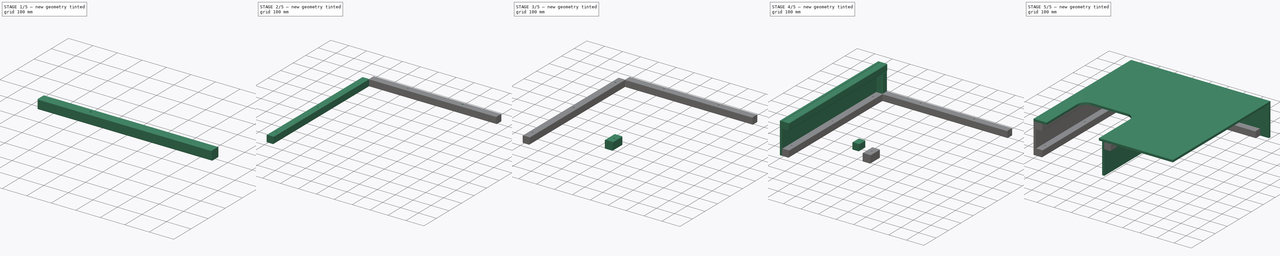
[diagram: build sequence overview — one tinted view per stage of 5, left to right]
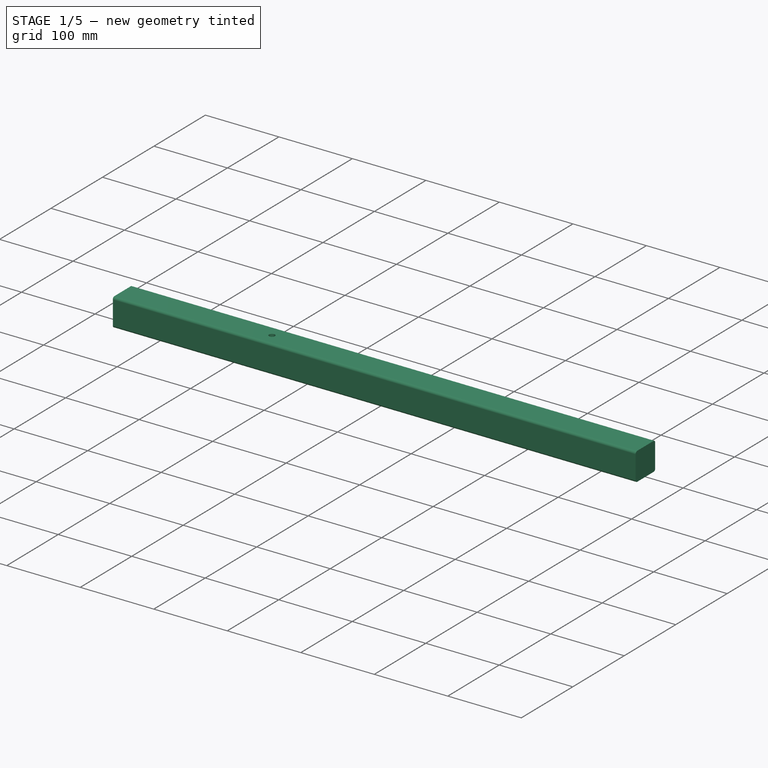
[diagram: stage 1 of 5 — iso view after this stage's code; geometry added in this stage tinted green]
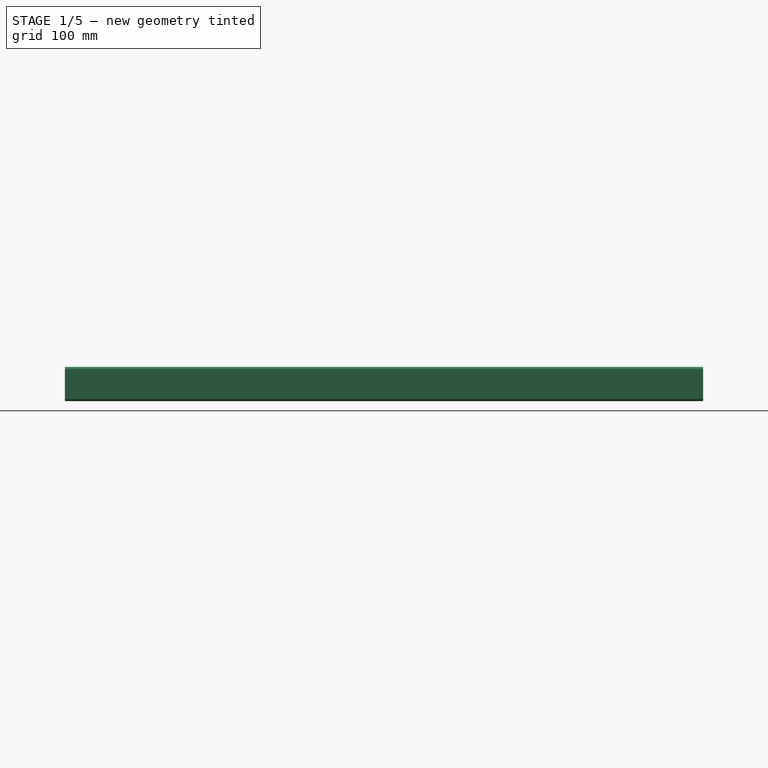
[diagram: stage 1 of 5 — front view after this stage's code; geometry added in this stage tinted green]
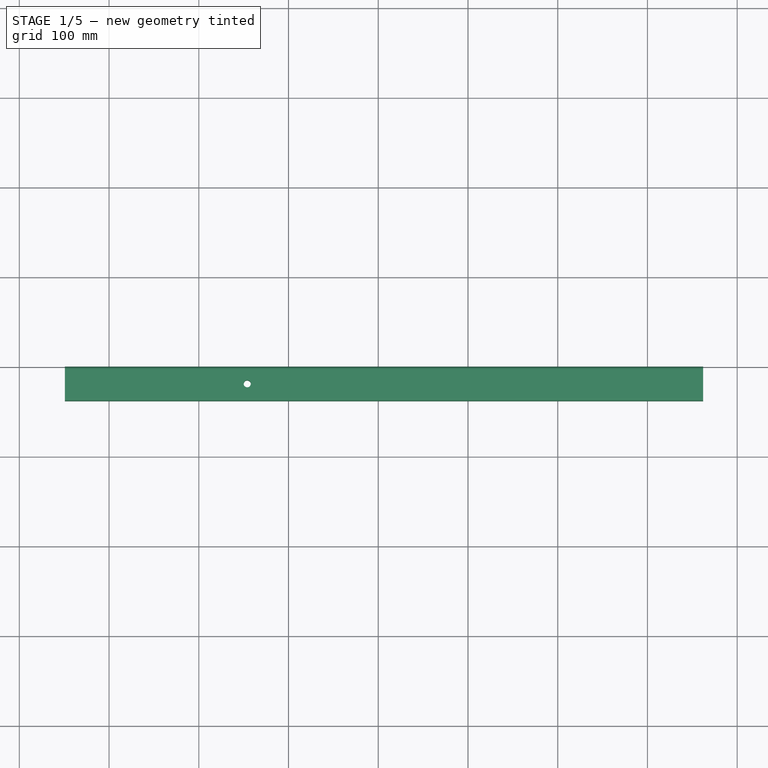
[diagram: stage 1 of 5 — top view after this stage's code; geometry added in this stage tinted green]
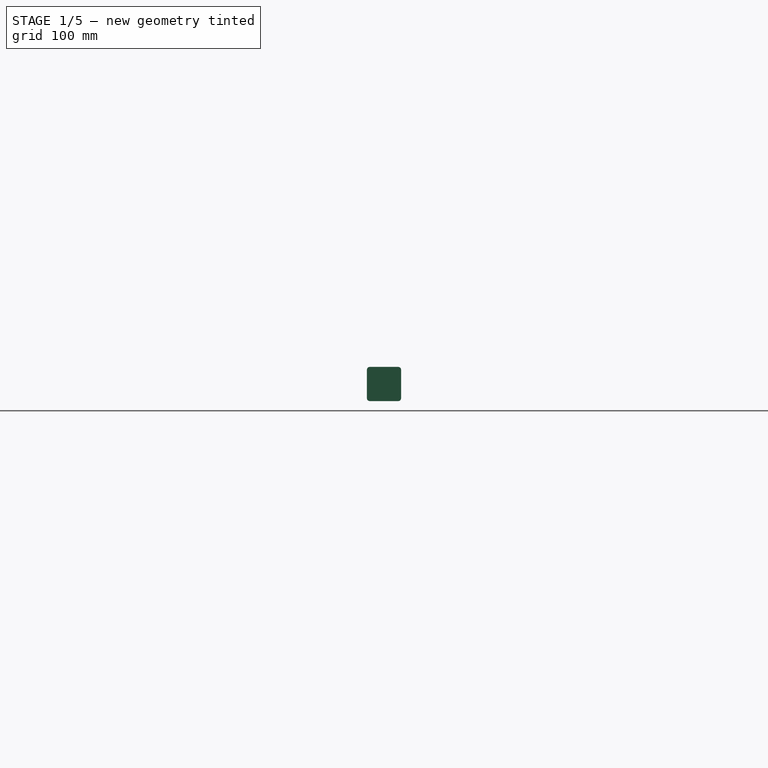
[diagram: stage 1 of 5 — right view after this stage's code; geometry added in this stage tinted green]
FCSTD DOCUMENT  (FreeCAD 0.19R)
Label: Baffle_Box
License: Creative Commons Attribution
LicenseURL: http://creativecommons.org/licenses/by/4.0/
objects: App::Link×66, Sketcher::SketchObject×10, Part::Extrusion×10, Part::Cut×6, Part::Feature×2, Part::Cylinder×1
note: 29 computed .brp shape members not serialized (recipe doc carries the construction recipe); baked Part::Feature solids carry a one-line shape summary decoded from their .brp

FEATURE [Sketcher::SketchObject] Sketch014  label="Sketch_2x2_rail003"
  sketch-geometry (8):
    g0: LineSegment StartX=0 StartY=34.925 StartZ=0 EndX=0 EndY=3.175 EndZ=0
    g1: ArcOfCircle CenterX=3.175 CenterY=34.925 CenterZ=0 NormalX=0 NormalY=0 NormalZ=1 AngleXU=0 Radius=3.175 StartAngle=1.5708 EndAngle=3.14159
    g2: LineSegment StartX=3.175 StartY=38.1 StartZ=0 EndX=34.925 EndY=38.1 EndZ=0
    g3: ArcOfCircle CenterX=34.925 CenterY=34.925 CenterZ=0 NormalX=0 NormalY=0 NormalZ=1 AngleXU=0 Radius=3.175 StartAngle=9e-16 EndAngle=1.5708
    g4: LineSegment StartX=38.1 StartY=34.925 StartZ=0 EndX=38.1 EndY=3.175 EndZ=0
    g5: ArcOfCircle CenterX=34.925 CenterY=3.175 CenterZ=0 NormalX=0 NormalY=0 NormalZ=1 AngleXU=0 Radius=3.175 StartAngle=4.71239 EndAngle=6.28319
    g6: LineSegment StartX=34.925 StartY=4e-16 StartZ=0 EndX=3.175 EndY=4e-16 EndZ=0
    g7: ArcOfCircle CenterX=3.175 CenterY=3.175 CenterZ=0 NormalX=0 NormalY=0 NormalZ=1 AngleXU=0 Radius=3.175 StartAngle=3.14159 EndAngle=4.71239
  constraints (22):
    c: Vertical(g0)
    c: Tangent(g0,g1) = -1.5708
    c: Radius(g1) = 3.175
    c: Angle(g1) = 1.5708
    c: Coincident(g2,g1)
    c: Horizontal(g2)
    c: Tangent(g2,g3) = 1.5708
    c: Coincident(g4,g3)
    c: Vertical(g4)
    c: Tangent(g5,g4) = 1.5708
    c: Horizontal(g6)
    c: Tangent(g6,g5) = 1.5708
    c: Tangent(g7,g6) = 1.5708
    c: Tangent(g7,g0) = -1.5708
    c: Equal(g1,g7)
    c: Equal(g7,g3)
    c: Equal(g2,g0)
    c: Equal(g0,g6)
    c: Equal(g6,g4)
    c: PointOnObject(g-1,g0)
    c: PointOnObject(g6,g-1)
    c: DistanceX(g0,g4) = 38.1
FEATURE [Part::Extrusion] Extrude014  label="BF_B"
  Base = -> Sketch014
  Dir = (0,0,1)
  DirMode = 2
  FaceMakerClass = Part::FaceMakerBullseye
  LengthFwd = 711.2
  LengthRev = 0
  Placement = pos=(50.8,800.1,196.85) rot=(0.57735,-0.57735,0.57735;4.18879rad)
  Solid = true
  Symmetric = false
FEATURE [App::Link] Link001  label="Part_F_Baffle_Side_Wall_002"
  LinkPlacement = pos=(800.1,9.59848e-05,19.0499) rot=(0.57735,0.57735,0.57735;2.0944rad)
  LinkedObject = -> Extrude012
  Placement = pos=(800.1,9.59848e-05,19.0499) rot=(0.57735,0.57735,0.57735;2.0944rad)
FEATURE [App::Link] Link002  label="BF_A001"
  LinkPlacement = pos=(762,2.34664e-05,196.85) rot=(-1,0,0;1.5708rad)
  LinkedObject = -> Extrude
  Placement = pos=(762,2.34664e-05,196.85) rot=(-1,0,0;1.5708rad)
FEATURE [App::Link] Link003  label="BF_B001"
  LinkPlacement = pos=(50.8,762,19.05) rot=(0.57735,0.57735,0.57735;2.0944rad)
  LinkedObject = -> Extrude014
  Placement = pos=(50.8,762,19.05) rot=(0.57735,0.57735,0.57735;2.0944rad)
FEATURE [App::Link] Link004  label="BF_C001"
  LinkPlacement = pos=(800.1,800.1,19.05) rot=(0,0,1;3.14159rad)
  LinkedObject = -> Extrude013
  Placement = pos=(800.1,800.1,19.05) rot=(0,0,1;3.14159rad)
FEATURE [App::Link] Link006  label="BF_E001"
  LinkPlacement = pos=(400.05,406.4,196.85) rot=(0,-0.707107,0.707107;3.14159rad)
  LinkedObject = -> Extrude016
  Placement = pos=(400.05,406.4,196.85) rot=(0,-0.707107,0.707107;3.14159rad)
FEATURE [Part::Feature] Screw_w_Washer_A
  Placement = pos=(-0.7,25.4,37.3) rot=(0,1,0;1.5708rad)
  shape: bbox 38.1 x 15.88 x 15.88 mm, 35 faces (baked)
FEATURE [App::Link] Link  label="Screw_w_Washer_A001"
  LinkPlacement = pos=(-0.774999,736.6,37.3) rot=(0,1,0;1.5708rad)
  LinkedObject = -> Screw_w_Washer_A
  Placement = pos=(-0.774999,736.6,37.3) rot=(0,1,0;1.5708rad)
FEATURE [App::Link] Link007  label="Screw_w_Washer_A002"
  LinkPlacement = pos=(-0.793745,508,38.1) rot=(0,1,0;1.5708rad)
  LinkedObject = -> Screw_w_Washer_A
  Placement = pos=(-0.793745,508,38.1) rot=(0,1,0;1.5708rad)
FEATURE [App::Link] Link008  label="Screw_w_Washer_A003"
  LinkPlacement = pos=(-0.793745,254,38.1) rot=(0,1,0;1.5708rad)
  LinkedObject = -> Screw_w_Washer_A
  Placement = pos=(-0.793745,254,38.1) rot=(0,1,0;1.5708rad)
FEATURE [App::Link] Link009  label="Screw_w_Washer_A004"
  LinkPlacement = pos=(-0.793742,781.05,63.5) rot=(0,1,0;1.5708rad)
  LinkedObject = -> Screw_w_Washer_A
  Placement = pos=(-0.793742,781.05,63.5) rot=(0,1,0;1.5708rad)
FEATURE [App::Link] Link010  label="Screw_w_Washer_A005"
  LinkPlacement = pos=(-0.793729,781.05,177.8) rot=(0,1,0;1.5708rad)
  LinkedObject = -> Screw_w_Washer_A
  Placement = pos=(-0.793729,781.05,177.8) rot=(0,1,0;1.5708rad)
FEATURE [App::Link] Link011  label="Screw_w_Washer_A006"
  LinkPlacement = pos=(31.75,813.594,38.1) rot=(1,0,0;1.5708rad)
  LinkedObject = -> Screw_w_Washer_A
  Placement = pos=(31.75,813.594,38.1) rot=(1,0,0;1.5708rad)
FEATURE [App::Link] Link012  label="Screw_w_Washer_A007"
  LinkPlacement = pos=(31.75,813.594,139.7) rot=(1,0,0;1.5708rad)
  LinkedObject = -> Screw_w_Washer_A
  Placement = pos=(31.75,813.594,139.7) rot=(1,0,0;1.5708rad)
FEATURE [App::Link] Link013  label="Screw_w_Washer_A008"
  LinkPlacement = pos=(95.25,813.6,177.8) rot=(1,0,0;1.5708rad)
  LinkedObject = -> Screw_w_Washer_A
  Placement = pos=(95.25,813.6,177.8) rot=(1,0,0;1.5708rad)
FEATURE [App::Link] Link014  label="Screw_w_Washer_A009"
  LinkPlacement = pos=(-1.58748,38.1,177.8) rot=(0,1,0;1.5708rad)
  LinkedObject = -> Screw_w_Washer_A
  Placement = pos=(-1.58748,38.1,177.8) rot=(0,1,0;1.5708rad)
FEATURE [App::Link] Link015  label="Screw_w_Washer_A010"
  LinkPlacement = pos=(-0.793758,279.4,177.8) rot=(0,1,0;1.5708rad)
  LinkedObject = -> Screw_w_Washer_A
  Placement = pos=(-0.793758,279.4,177.8) rot=(0,1,0;1.5708rad)
FEATURE [App::Link] Link016  label="Screw_w_Washer_A011"
  LinkPlacement = pos=(-0.793729,533.4,177.8) rot=(0,1,0;1.5708rad)
  LinkedObject = -> Screw_w_Washer_A
  Placement = pos=(-0.793729,533.4,177.8) rot=(0,1,0;1.5708rad)
FEATURE [App::Link] Link017  label="Screw_w_Washer_A012"
  LinkPlacement = pos=(31.7501,25.4,210.344) rot=(0.707107,0.707107,0;3.14159rad)
  LinkedObject = -> Screw_w_Washer_A
  Placement = pos=(31.7501,25.4,210.344) rot=(0.707107,0.707107,0;3.14159rad)
FEATURE [App::Link] Link018  label="Screw_w_Washer_A013"
  LinkPlacement = pos=(69.85,781.05,210.344) rot=(0,1,0;3.14159rad)
  LinkedObject = -> Screw_w_Washer_A
  Placement = pos=(69.85,781.05,210.344) rot=(0,1,0;3.14159rad)
FEATURE [App::Link] Link019  label="Screw_w_Washer_A014"
  LinkPlacement = pos=(31.75,755.65,210.344) rot=(0,1,0;3.14159rad)
  LinkedObject = -> Screw_w_Washer_A
  Placement = pos=(31.75,755.65,210.344) rot=(0,1,0;3.14159rad)
FEATURE [App::Link] Link020  label="Screw_w_Washer_A015"
  LinkPlacement = pos=(31.75,393.7,210.344) rot=(0,1,0;3.14159rad)
  LinkedObject = -> Screw_w_Washer_A
  Placement = pos=(31.75,393.7,210.344) rot=(0,1,0;3.14159rad)
FEATURE [App::Link] Link021  label="Screw_w_Washer_A016"
  LinkPlacement = pos=(31.75,196.85,210.344) rot=(0,1,0;3.14159rad)
  LinkedObject = -> Screw_w_Washer_A
  Placement = pos=(31.75,196.85,210.344) rot=(0,1,0;3.14159rad)
FEATURE [App::Link] Link022  label="Screw_w_Washer_A017"
  LinkPlacement = pos=(31.75,584.201,210.344) rot=(0,1,0;3.14159rad)
  LinkedObject = -> Screw_w_Washer_A
  Placement = pos=(31.75,584.201,210.344) rot=(0,1,0;3.14159rad)
FEATURE [App::Link] Link023  label="Screw_w_Washer_A018"
  LinkPlacement = pos=(742.95,781.05,210.344) rot=(0,1,0;3.14159rad)
  LinkedObject = -> Screw_w_Washer_A
  Placement = pos=(742.95,781.05,210.344) rot=(0,1,0;3.14159rad)
FEATURE [App::Link] Link024  label="Screw_w_Washer_A019"
  LinkPlacement = pos=(533.4,781.05,210.344) rot=(1,0,0;3.14159rad)
  LinkedObject = -> Screw_w_Washer_A
  Placement = pos=(533.4,781.05,210.344) rot=(1,0,0;3.14159rad)
FEATURE [App::Link] Link025  label="Screw_w_Washer_A020"
  LinkPlacement = pos=(279.4,781.05,210.344) rot=(0,1,0;3.14159rad)
  LinkedObject = -> Screw_w_Washer_A
  Placement = pos=(279.4,781.05,210.344) rot=(0,1,0;3.14159rad)
FEATURE [App::Link] Link026  label="Screw_w_Washer_A021"
  LinkPlacement = pos=(781.05,25.4002,210.344) rot=(0,1,0;3.14159rad)
  LinkedObject = -> Screw_w_Washer_A
  Placement = pos=(781.05,25.4002,210.344) rot=(0,1,0;3.14159rad)
FEATURE [App::Link] Link027  label="Screw_w_Washer_A022"
  LinkPlacement = pos=(781.05,755.65,210.344) rot=(0,1,0;3.14159rad)
  LinkedObject = -> Screw_w_Washer_A
  Placement = pos=(781.05,755.65,210.344) rot=(0,1,0;3.14159rad)
FEATURE [App::Link] Link028  label="Screw_w_Washer_A023"
  LinkPlacement = pos=(781.05,393.7,210.344) rot=(0,1,0;3.14159rad)
  LinkedObject = -> Screw_w_Washer_A
  Placement = pos=(781.05,393.7,210.344) rot=(0,1,0;3.14159rad)
FEATURE [App::Link] Link029  label="Screw_w_Washer_A024"
  LinkPlacement = pos=(781.05,584.201,210.344) rot=(0,1,0;3.14159rad)
  LinkedObject = -> Screw_w_Washer_A
  Placement = pos=(781.05,584.201,210.344) rot=(0,1,0;3.14159rad)
FEATURE [App::Link] Link030  label="Screw_w_Washer_A025"
  LinkPlacement = pos=(781.05,196.85,210.344) rot=(0,1,0;3.14159rad)
  LinkedObject = -> Screw_w_Washer_A
  Placement = pos=(781.05,196.85,210.344) rot=(0,1,0;3.14159rad)
FEATURE [App::Link] Link031  label="Screw_w_Washer_A026"
  LinkPlacement = pos=(431.8,19.0501,210.344) rot=(0,1,0;3.14159rad)
  LinkedObject = -> Screw_w_Washer_A
  Placement = pos=(431.8,19.0501,210.344) rot=(0,1,0;3.14159rad)
FEATURE [App::Link] Link032  label="Screw_w_Washer_A027"
  LinkPlacement = pos=(399.256,31.75,177.8) rot=(0,1,0;1.5708rad)
  LinkedObject = -> Screw_w_Washer_A
  Placement = pos=(399.256,31.75,177.8) rot=(0,1,0;1.5708rad)
FEATURE [App::Link] Link033  label="Screw_w_Washer_A028"
  LinkPlacement = pos=(381,387.35,210.344) rot=(0,1,0;3.14159rad)
  LinkedObject = -> Screw_w_Washer_A
  Placement = pos=(381,387.35,210.344) rot=(0,1,0;3.14159rad)
FEATURE [App::Link] Link034  label="Screw_w_Washer_A029"
  LinkPlacement = pos=(413.544,374.65,177.8) rot=(0,-1,0;1.5708rad)
  LinkedObject = -> Screw_w_Washer_A
  Placement = pos=(413.544,374.65,177.8) rot=(0,-1,0;1.5708rad)
FEATURE [App::Link] Link035  label="Screw_w_Washer_A030"
  LinkPlacement = pos=(414.338,225.425,41.2751) rot=(0,-1,0;1.5708rad)
  LinkedObject = -> Screw_w_Washer_A
  Placement = pos=(414.338,225.425,41.2751) rot=(0,-1,0;1.5708rad)
FEATURE [App::Link] Link036  label="Screw_w_Washer_A031"
  LinkPlacement = pos=(413.544,180.975,41.2751) rot=(0,-1,0;1.5708rad)
  LinkedObject = -> Screw_w_Washer_A
  Placement = pos=(413.544,180.975,41.2751) rot=(0,-1,0;1.5708rad)
FEATURE [App::Link] Link037  label="Screw_w_Washer_A032"
  LinkPlacement = pos=(723.9,813.601,177.8) rot=(1,0,0;1.5708rad)
  LinkedObject = -> Screw_w_Washer_A
  Placement = pos=(723.9,813.601,177.8) rot=(1,0,0;1.5708rad)
FEATURE [App::Link] Link038  label="Screw_w_Washer_A033"
  LinkPlacement = pos=(406.4,813.801,177.8) rot=(1,0,0;1.5708rad)
  LinkedObject = -> Screw_w_Washer_A
  Placement = pos=(406.4,813.801,177.8) rot=(1,0,0;1.5708rad)
FEATURE [App::Link] Link039  label="Screw_w_Washer_A034"
  LinkPlacement = pos=(406.4,813.8,38.1001) rot=(1,0,0;1.5708rad)
  LinkedObject = -> Screw_w_Washer_A
  Placement = pos=(406.4,813.8,38.1001) rot=(1,0,0;1.5708rad)
FEATURE [App::Link] Link040  label="Screw_w_Washer_A035"
  LinkPlacement = pos=(813.594,25.4001,38.1001) rot=(0,-1,0;1.5708rad)
  LinkedObject = -> Screw_w_Washer_A
  Placement = pos=(813.594,25.4001,38.1001) rot=(0,-1,0;1.5708rad)
FEATURE [App::Link] Link041  label="Screw_w_Washer_A036"
  LinkPlacement = pos=(813.594,254,38.1) rot=(0,-1,0;1.5708rad)
  LinkedObject = -> Screw_w_Washer_A
  Placement = pos=(813.594,254,38.1) rot=(0,-1,0;1.5708rad)
FEATURE [App::Link] Link042  label="Screw_w_Washer_A037"
  LinkPlacement = pos=(813.594,508,38.1001) rot=(0,-1,0;1.5708rad)
  LinkedObject = -> Screw_w_Washer_A
  Placement = pos=(813.594,508,38.1001) rot=(0,-1,0;1.5708rad)
FEATURE [App::Link] Link043  label="Screw_w_Washer_A038"
  LinkPlacement = pos=(813.594,736.6,38.1001) rot=(0,-1,0;1.5708rad)
  LinkedObject = -> Screw_w_Washer_A
  Placement = pos=(813.594,736.6,38.1001) rot=(0,-1,0;1.5708rad)
FEATURE [App::Link] Link044  label="Screw_w_Washer_A039"
  LinkPlacement = pos=(723.9,813.8,38.1001) rot=(1,0,0;1.5708rad)
  LinkedObject = -> Screw_w_Washer_A
  Placement = pos=(723.9,813.8,38.1001) rot=(1,0,0;1.5708rad)
FEATURE [App::Link] Link045  label="Screw_w_Washer_A040"
  LinkPlacement = pos=(781.05,813.594,38.1001) rot=(1,0,0;1.5708rad)
  LinkedObject = -> Screw_w_Washer_A
  Placement = pos=(781.05,813.594,38.1001) rot=(1,0,0;1.5708rad)
FEATURE [App::Link] Link046  label="Screw_w_Washer_A041"
  LinkPlacement = pos=(781.05,813.8,139.7) rot=(1,0,0;1.5708rad)
  LinkedObject = -> Screw_w_Washer_A
  Placement = pos=(781.05,813.8,139.7) rot=(1,0,0;1.5708rad)
FEATURE [App::Link] Link047  label="Screw_w_Washer_A042"
  LinkPlacement = pos=(813.594,38.1001,177.8) rot=(0,-1,0;1.5708rad)
  LinkedObject = -> Screw_w_Washer_A
  Placement = pos=(813.594,38.1001,177.8) rot=(0,-1,0;1.5708rad)
FEATURE [App::Link] Link048  label="Screw_w_Washer_A043"
  LinkPlacement = pos=(813.594,279.4,177.8) rot=(0,-1,0;1.5708rad)
  LinkedObject = -> Screw_w_Washer_A
  Placement = pos=(813.594,279.4,177.8) rot=(0,-1,0;1.5708rad)
FEATURE [App::Link] Link049  label="Screw_w_Washer_A044"
  LinkPlacement = pos=(813.594,533.4,177.8) rot=(0,-1,0;1.5708rad)
  LinkedObject = -> Screw_w_Washer_A
  Placement = pos=(813.594,533.4,177.8) rot=(0,-1,0;1.5708rad)
FEATURE [App::Link] Link050  label="Screw_w_Washer_A045"
  LinkPlacement = pos=(813.594,781.05,177.8) rot=(0,-1,0;1.5708rad)
  LinkedObject = -> Screw_w_Washer_A
  Placement = pos=(813.594,781.05,177.8) rot=(0,-1,0;1.5708rad)
FEATURE [App::Link] Link051  label="Screw_w_Washer_A046"
  LinkPlacement = pos=(813.5,781.05,63.5001) rot=(0,-1,0;1.5708rad)
  LinkedObject = -> Screw_w_Washer_A
  Placement = pos=(813.5,781.05,63.5001) rot=(0,-1,0;1.5708rad)
FEATURE [Part::Cylinder] Cylinder
  Angle = 360
  AttacherType = Attacher::AttachEngine3D
  Height = 50.8
  Placement = pos=(381,203.2,16.6687) rot=(0,0,1;0rad)
  Radius = 3.96875
FEATURE [App::Link] Link055  label="Baffle_Frame_D001"
  LinkPlacement = pos=(749.3,-8.93235e-05,0) rot=(0,0,1;0rad)
  LinkedObject = -> Cut003
  Placement = pos=(749.3,-8.93235e-05,0) rot=(0,0,1;0rad)
FEATURE [App::Link] Link056  label="T-Nut_1/005"
  LinkPlacement = pos=(31.75,50.8,58.45) rot=(-1,0,0;1.5708rad)
  LinkedObject = -> User_Library_t_nut_scaleable_M6
  Placement = pos=(31.75,50.8,58.45) rot=(-1,0,0;1.5708rad)
FEATURE [App::Link] Link057  label="T-Nut_1/006"
  LinkPlacement = pos=(31.75,381,58.35) rot=(-1,0,0;1.5708rad)
  LinkedObject = -> User_Library_t_nut_scaleable_M6
  Placement = pos=(31.75,381,58.35) rot=(-1,0,0;1.5708rad)
FEATURE [App::Link] Link058  label="T-Nut_1/007"
  LinkPlacement = pos=(31.75,711.2,58.4) rot=(-1,0,0;1.5708rad)
  LinkedObject = -> User_Library_t_nut_scaleable_M6
  Placement = pos=(31.75,711.2,58.4) rot=(-1,0,0;1.5708rad)
FEATURE [App::Link] Link059  label="T-Nut_1/008"
  LinkPlacement = pos=(781.051,50.8,58.4501) rot=(-1,0,0;1.5708rad)
  LinkedObject = -> User_Library_t_nut_scaleable_M6
  Placement = pos=(781.051,50.8,58.4501) rot=(-1,0,0;1.5708rad)
FEATURE [App::Link] Link060  label="T-Nut_1/009"
  LinkPlacement = pos=(781.05,381,58.3502) rot=(-1,0,0;1.5708rad)
  LinkedObject = -> User_Library_t_nut_scaleable_M6
  Placement = pos=(781.05,381,58.3502) rot=(-1,0,0;1.5708rad)
FEATURE [App::Link] Link061  label="T-Nut_1/010"
  LinkPlacement = pos=(781.051,711.2,58.4501) rot=(-1,0,0;1.5708rad)
  LinkedObject = -> User_Library_t_nut_scaleable_M6
  Placement = pos=(781.051,711.2,58.4501) rot=(-1,0,0;1.5708rad)
FEATURE [App::Link] Link062  label="Cylinder004"
  LinkPlacement = pos=(254,781.05,12.7) rot=(0,0,1;0rad)
  LinkedObject = -> Cylinder
  Placement = pos=(254,781.05,12.7) rot=(0,0,1;0rad)
FEATURE [App::Link] Link063  label="Cylinder005"
  LinkPlacement = pos=(558.8,781.05,12.7) rot=(0,0,1;0rad)
  LinkedObject = -> Cylinder
  Placement = pos=(558.8,781.05,12.7) rot=(0,0,1;0rad)
FEATURE [Part::Cut] Cut004
  Base = -> Link003
  Tool = -> Link062
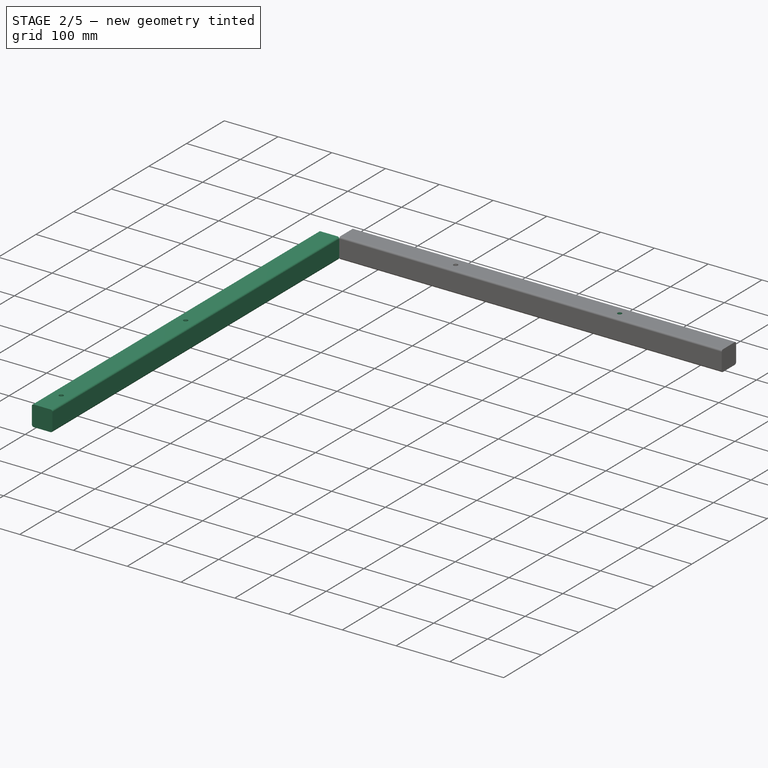
[diagram: stage 2 of 5 — iso view after this stage's code; geometry added in this stage tinted green]
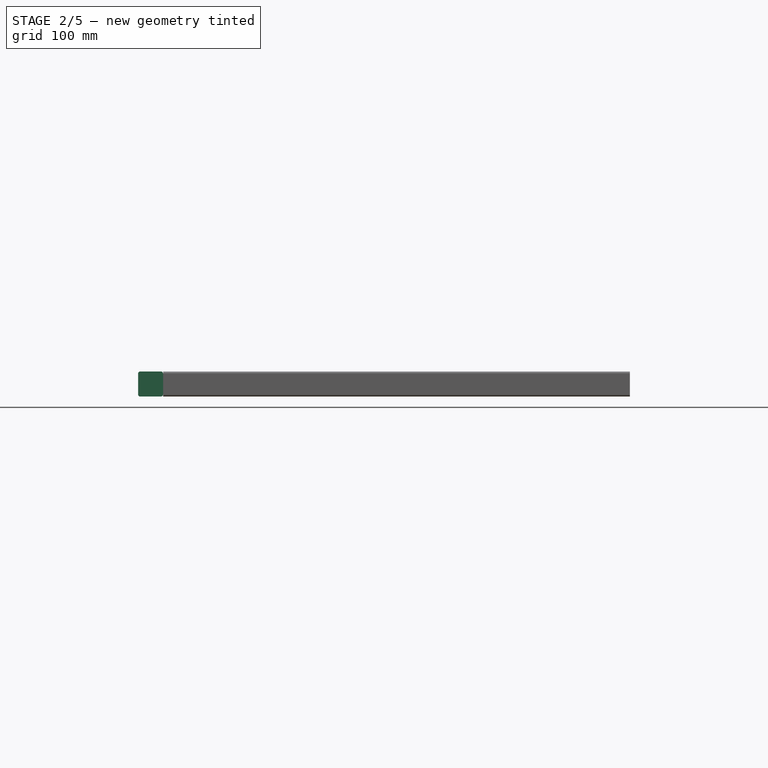
[diagram: stage 2 of 5 — front view after this stage's code; geometry added in this stage tinted green]
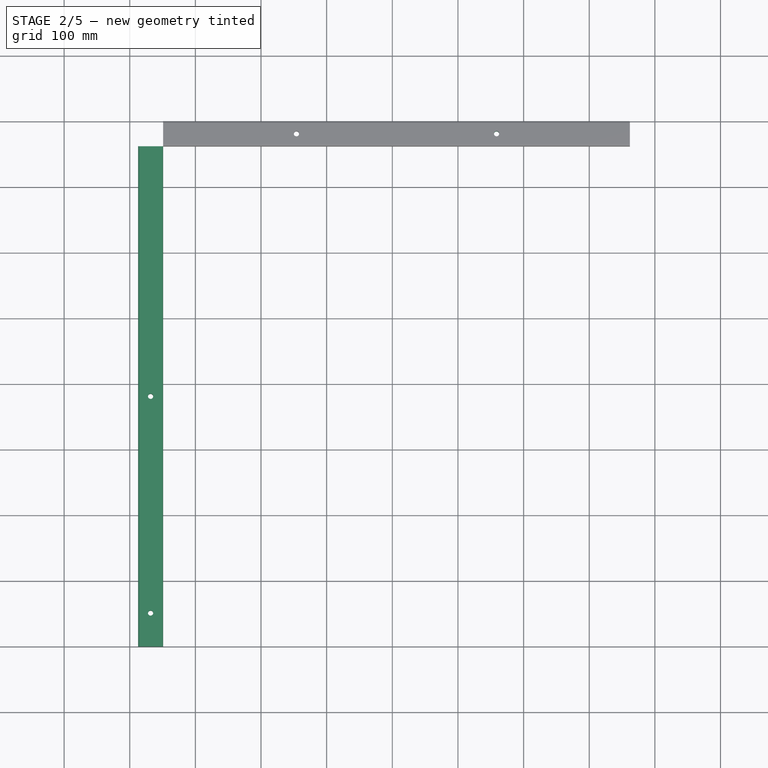
[diagram: stage 2 of 5 — top view after this stage's code; geometry added in this stage tinted green]
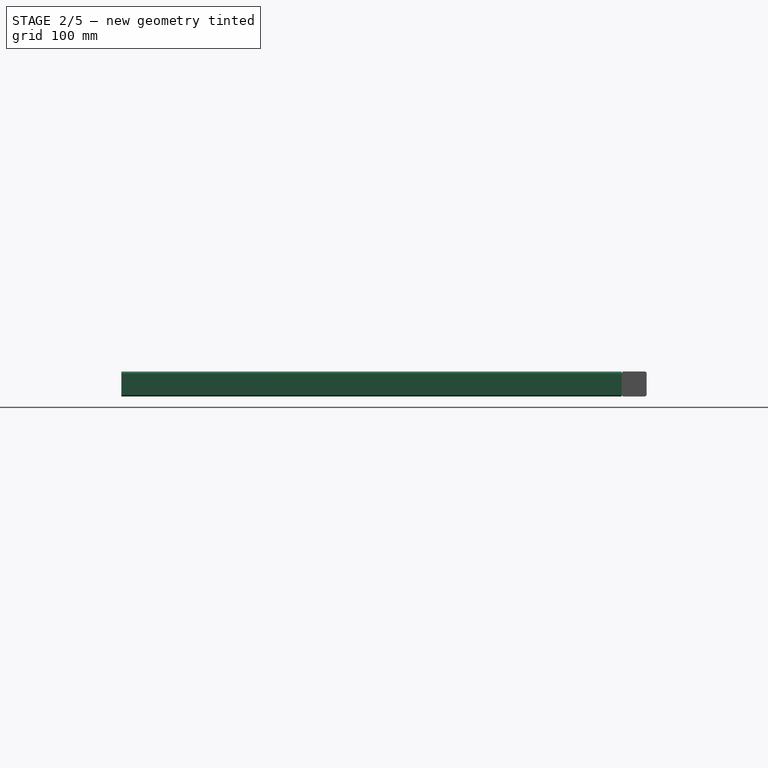
[diagram: stage 2 of 5 — right view after this stage's code; geometry added in this stage tinted green]
FEATURE [Sketcher::SketchObject] Sketch015  label="Sketch_2x2_rail004"
  sketch-geometry (8):
    g0: LineSegment StartX=0 StartY=34.925 StartZ=0 EndX=0 EndY=3.175 EndZ=0
    g1: ArcOfCircle CenterX=3.175 CenterY=34.925 CenterZ=0 NormalX=0 NormalY=0 NormalZ=1 AngleXU=0 Radius=3.175 StartAngle=1.5708 EndAngle=3.14159
    g2: LineSegment StartX=3.175 StartY=38.1 StartZ=0 EndX=34.925 EndY=38.1 EndZ=0
    g3: ArcOfCircle CenterX=34.925 CenterY=34.925 CenterZ=0 NormalX=0 NormalY=0 NormalZ=1 AngleXU=0 Radius=3.175 StartAngle=1.2e-15 EndAngle=1.5708
    g4: LineSegment StartX=38.1 StartY=34.925 StartZ=0 EndX=38.1 EndY=3.175 EndZ=0
    g5: ArcOfCircle CenterX=34.925 CenterY=3.175 CenterZ=0 NormalX=0 NormalY=0 NormalZ=1 AngleXU=0 Radius=3.175 StartAngle=4.71239 EndAngle=6.28319
    g6: LineSegment StartX=34.925 StartY=0 StartZ=0 EndX=3.175 EndY=0 EndZ=0
    g7: ArcOfCircle CenterX=3.175 CenterY=3.175 CenterZ=0 NormalX=0 NormalY=0 NormalZ=1 AngleXU=0 Radius=3.175 StartAngle=3.14159 EndAngle=4.71239
  constraints (22):
    c: Vertical(g0)
    c: Tangent(g0,g1) = -1.5708
    c: Radius(g1) = 3.175
    c: Angle(g1) = 1.5708
    c: Coincident(g2,g1)
    c: Horizontal(g2)
    c: Tangent(g2,g3) = 1.5708
    c: Coincident(g4,g3)
    c: Vertical(g4)
    c: Tangent(g5,g4) = 1.5708
    c: Horizontal(g6)
    c: Tangent(g6,g5) = 1.5708
    c: Tangent(g7,g6) = 1.5708
    c: Tangent(g7,g0) = -1.5708
    c: Equal(g1,g7)
    c: Equal(g7,g3)
    c: Equal(g2,g0)
    c: Equal(g0,g6)
    c: Equal(g6,g4)
    c: PointOnObject(g-1,g0)
    c: PointOnObject(g6,g-1)
    c: DistanceX(g0,g4) = 38.1
FEATURE [Part::Extrusion] Extrude015  label="BF_D"
  Base = -> Sketch015
  Dir = (0,0,1)
  DirMode = 2
  FaceMakerClass = Part::FaceMakerBullseye
  LengthFwd = 762
  LengthRev = 0
  Placement = pos=(12.7,2.4e-14,19.05) rot=(0.57735,0.57735,0.57735;4.18879rad)
  Solid = true
  Symmetric = false
FEATURE [Part::Feature] User_Library_t_nut_scaleable_M6  label="T-Nut_1/4"
  Placement = pos=(381,203.2,64.7937) rot=(1,0,0;4.71239rad)
  shape: bbox 18 x 18 x 9 mm, 45 faces (baked)
FEATURE [App::Link] Link052  label="Cylinder001"
  LinkPlacement = pos=(31.75,50.8,12.7) rot=(0,0,1;0rad)
  LinkedObject = -> Cylinder
  Placement = pos=(31.75,50.8,12.7) rot=(0,0,1;0rad)
FEATURE [App::Link] Link053  label="Cylinder002"
  LinkPlacement = pos=(31.75,381,12.7) rot=(0,0,1;0rad)
  LinkedObject = -> Cylinder
  Placement = pos=(31.75,381,12.7) rot=(0,0,1;0rad)
FEATURE [App::Link] Link054  label="Cylinder003"
  LinkPlacement = pos=(31.75,711.201,12.7) rot=(0,0,1;0rad)
  LinkedObject = -> Cylinder
  Placement = pos=(31.75,711.201,12.7) rot=(0,0,1;0rad)
FEATURE [Part::Cut] Cut001
  Base = -> Extrude015
  Tool = -> Link052
FEATURE [Part::Cut] Cut002
  Base = -> Cut001
  Tool = -> Link053
FEATURE [Part::Cut] Cut005  label="Baffle_Frame_B"
  Base = -> Cut004
  Tool = -> Link063
FEATURE [App::Link] Link064  label="T-Nut_1/011"
  LinkPlacement = pos=(254,781.05,58.4501) rot=(-1,0,0;1.5708rad)
  LinkedObject = -> User_Library_t_nut_scaleable_M6
  Placement = pos=(254,781.05,58.4501) rot=(-1,0,0;1.5708rad)
FEATURE [App::Link] Link065  label="T-Nut_1/012"
  LinkPlacement = pos=(558.8,781.05,58.4501) rot=(-1,0,0;1.5708rad)
  LinkedObject = -> User_Library_t_nut_scaleable_M6
  Placement = pos=(558.8,781.05,58.4501) rot=(-1,0,0;1.5708rad)
FEATURE [App::Link] Link066  label="Screw_w_Washer_A047"
  LinkPlacement = pos=(95.25,813.594,38.1002) rot=(1,0,0;1.5708rad)
  LinkedObject = -> Screw_w_Washer_A
  Placement = pos=(95.25,813.594,38.1002) rot=(1,0,0;1.5708rad)
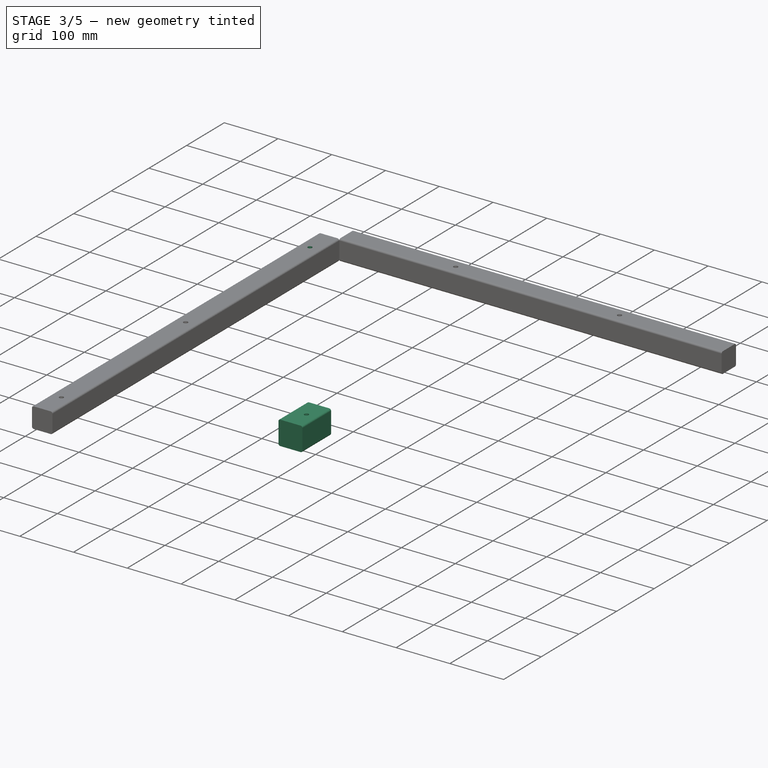
[diagram: stage 3 of 5 — iso view after this stage's code; geometry added in this stage tinted green]
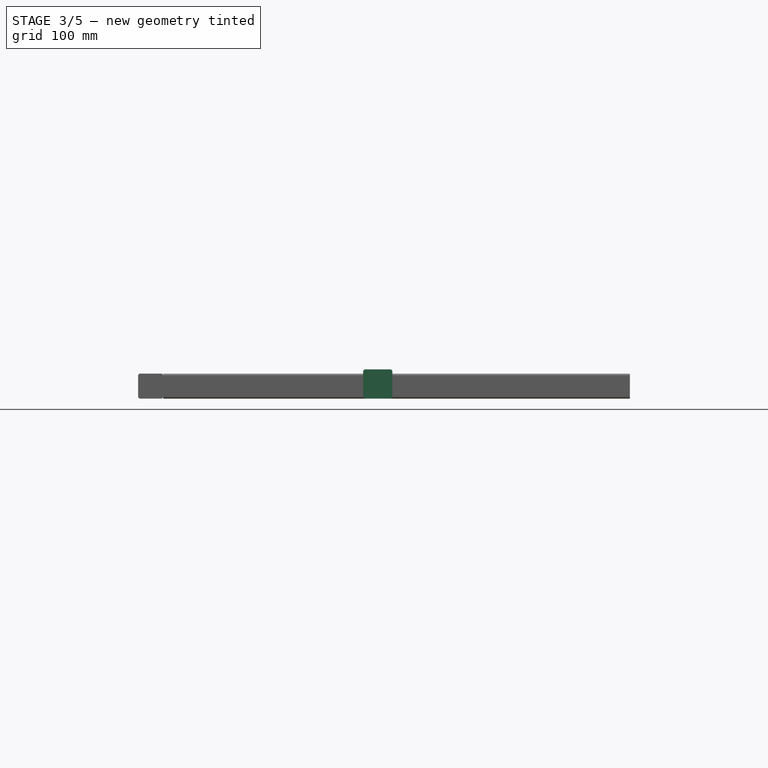
[diagram: stage 3 of 5 — front view after this stage's code; geometry added in this stage tinted green]
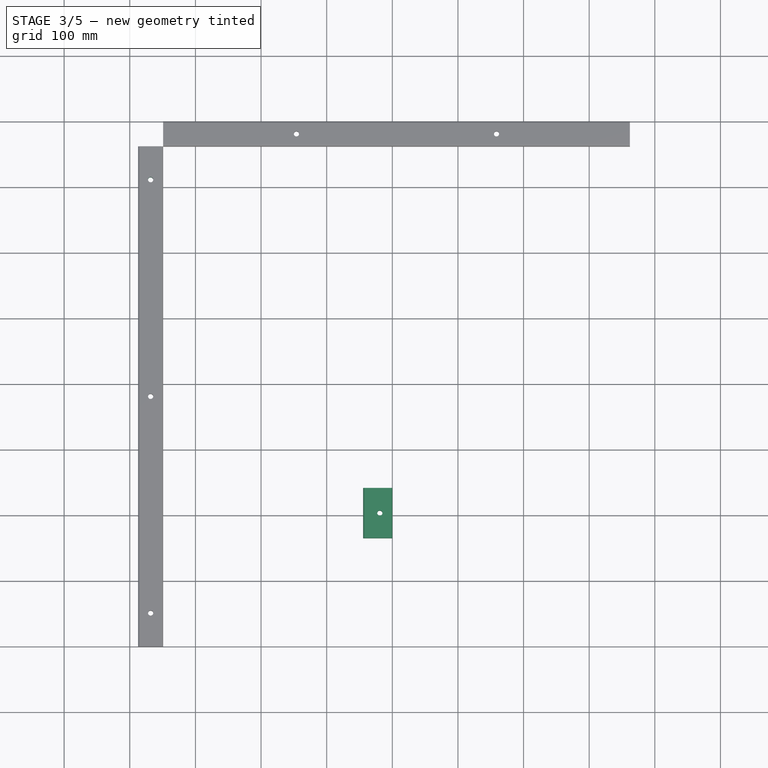
[diagram: stage 3 of 5 — top view after this stage's code; geometry added in this stage tinted green]
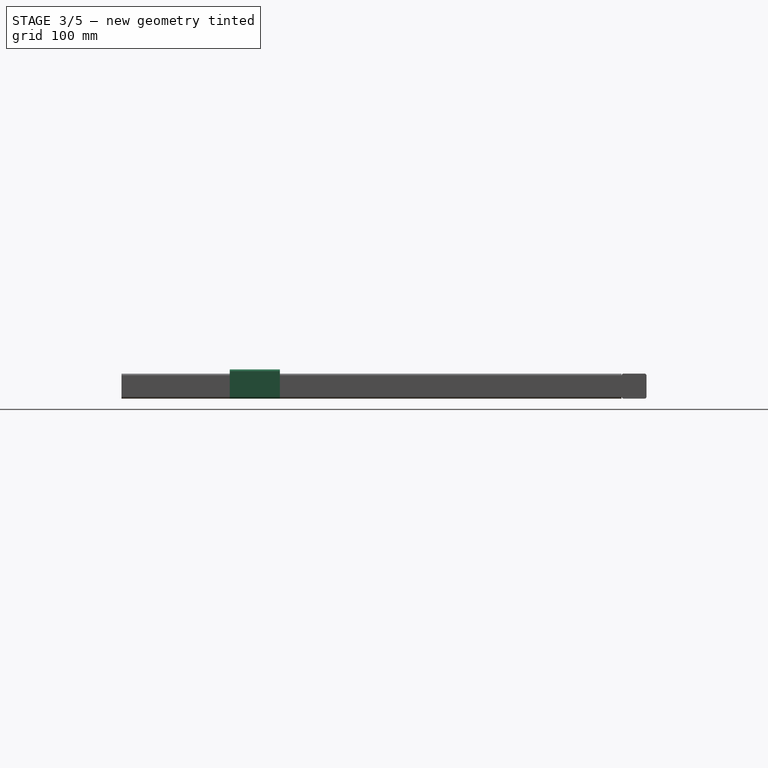
[diagram: stage 3 of 5 — right view after this stage's code; geometry added in this stage tinted green]
FEATURE [Sketcher::SketchObject] Sketch017  label="Sketch_2x2_rail006"
  sketch-geometry (8):
    g0: LineSegment StartX=0 StartY=41.275 StartZ=0 EndX=0 EndY=3.175 EndZ=0
    g1: ArcOfCircle CenterX=3.175 CenterY=41.275 CenterZ=0 NormalX=0 NormalY=0 NormalZ=1 AngleXU=0 Radius=3.175 StartAngle=1.5708 EndAngle=3.14159
    g2: LineSegment StartX=3.175 StartY=44.45 StartZ=0 EndX=41.275 EndY=44.45 EndZ=0
    g3: ArcOfCircle CenterX=41.275 CenterY=41.275 CenterZ=0 NormalX=0 NormalY=0 NormalZ=1 AngleXU=0 Radius=3.175 StartAngle=-9e-16 EndAngle=1.5708
    g4: LineSegment StartX=44.45 StartY=41.275 StartZ=0 EndX=44.45 EndY=3.175 EndZ=0
    g5: ArcOfCircle CenterX=41.275 CenterY=3.175 CenterZ=0 NormalX=0 NormalY=0 NormalZ=1 AngleXU=0 Radius=3.175 StartAngle=4.71239 EndAngle=6.28319
    g6: LineSegment StartX=41.275 StartY=1.3e-15 StartZ=0 EndX=3.175 EndY=1.3e-15 EndZ=0
    g7: ArcOfCircle CenterX=3.175 CenterY=3.175 CenterZ=0 NormalX=0 NormalY=0 NormalZ=1 AngleXU=0 Radius=3.175 StartAngle=3.14159 EndAngle=4.71239
  constraints (22):
    c: Vertical(g0)
    c: Tangent(g0,g1) = -1.5708
    c: Radius(g1) = 3.175
    c: Angle(g1) = 1.5708
    c: Coincident(g2,g1)
    c: Horizontal(g2)
    c: Tangent(g2,g3) = 1.5708
    c: Coincident(g4,g3)
    c: Vertical(g4)
    c: Tangent(g5,g4) = 1.5708
    c: Horizontal(g6)
    c: Tangent(g6,g5) = 1.5708
    c: Tangent(g7,g6) = 1.5708
    c: Tangent(g7,g0) = -1.5708
    c: Equal(g1,g7)
    c: Equal(g7,g3)
    c: Equal(g2,g0)
    c: Equal(g0,g6)
    c: Equal(g6,g4)
    c: PointOnObject(g-1,g0)
    c: PointOnObject(g6,g-1)
    c: DistanceX(g0,g4) = 44.45
FEATURE [Part::Extrusion] Extrude017  label="BF_F"
  Base = -> Sketch017
  Dir = (0,0,1)
  DirMode = 2
  FaceMakerClass = Part::FaceMakerBullseye
  LengthFwd = 76.2
  LengthRev = 0
  Placement = pos=(400.05,165.1,19.05) rot=(0,0.707107,0.707107;3.14159rad)
  Solid = true
  Symmetric = false
FEATURE [Part::Cut] Cut  label="Baffle_Anchor_A"
  Base = -> Extrude017
  Tool = -> Cylinder
FEATURE [Part::Cut] Cut003  label="Baffle_Frame_D"
  Base = -> Cut002
  Tool = -> Link054
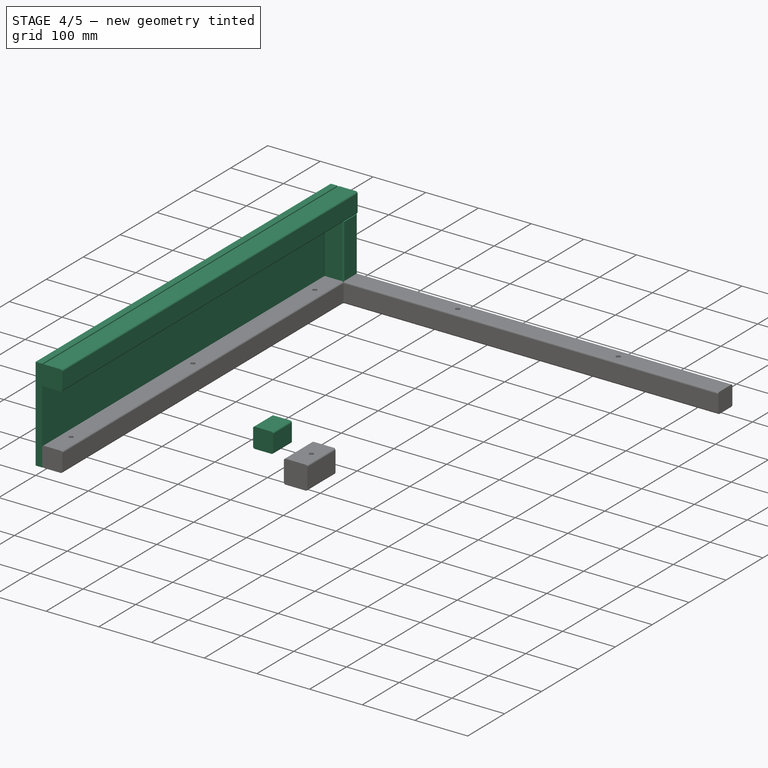
[diagram: stage 4 of 5 — iso view after this stage's code; geometry added in this stage tinted green]
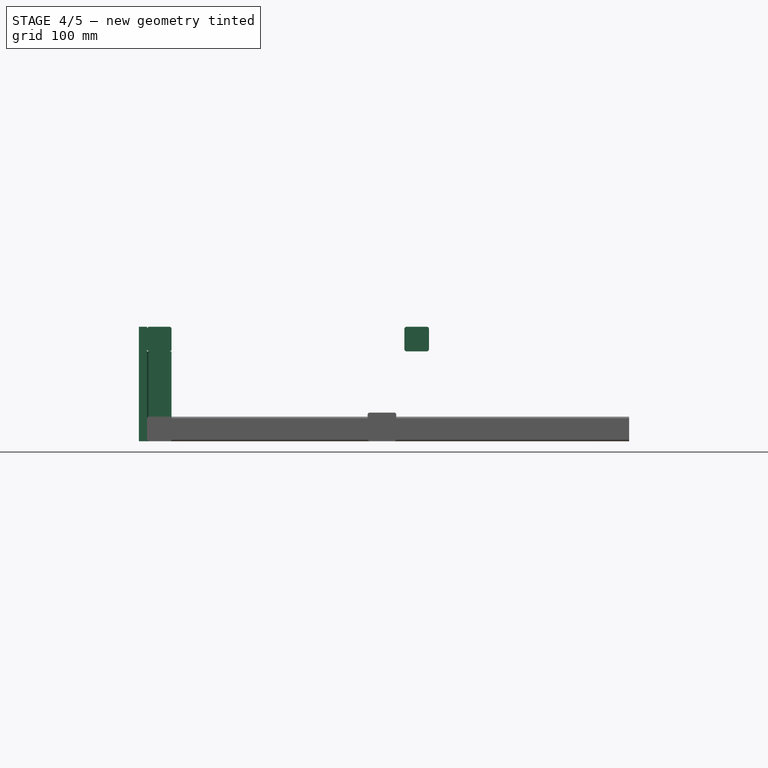
[diagram: stage 4 of 5 — front view after this stage's code; geometry added in this stage tinted green]
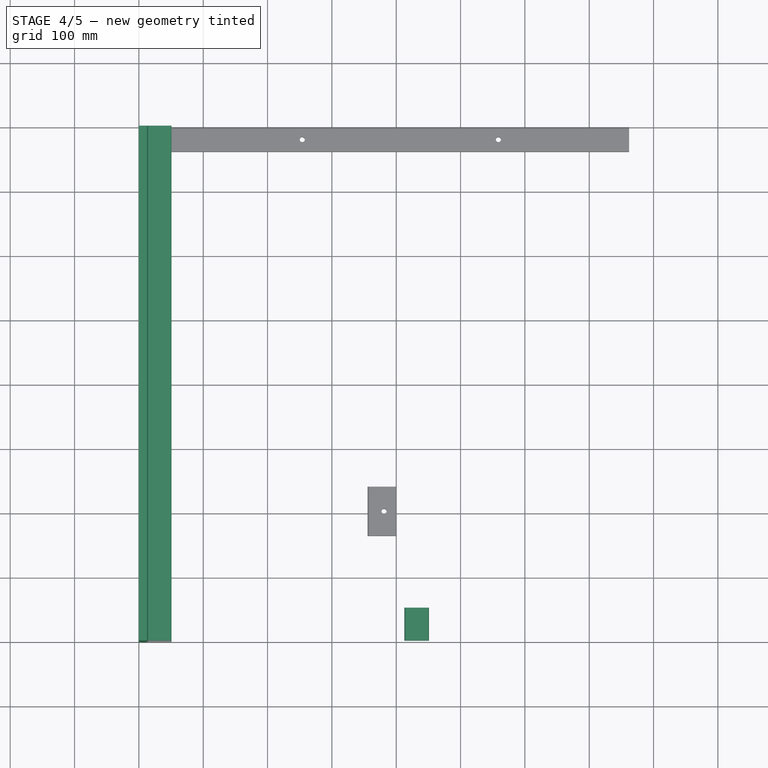
[diagram: stage 4 of 5 — top view after this stage's code; geometry added in this stage tinted green]
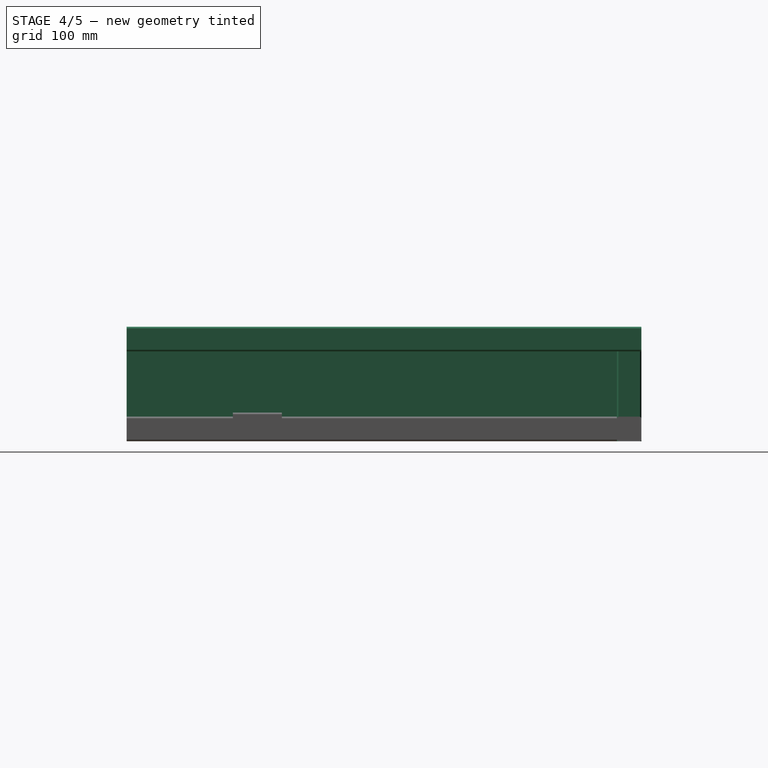
[diagram: stage 4 of 5 — right view after this stage's code; geometry added in this stage tinted green]
FEATURE [Sketcher::SketchObject] Sketch  label="Sketch_2x2_rail001"
  sketch-geometry (8):
    g0: LineSegment StartX=0 StartY=34.925 StartZ=0 EndX=0 EndY=3.175 EndZ=0
    g1: ArcOfCircle CenterX=3.175 CenterY=34.925 CenterZ=0 NormalX=0 NormalY=0 NormalZ=1 AngleXU=0 Radius=3.175 StartAngle=1.5708 EndAngle=3.14159
    g2: LineSegment StartX=3.175 StartY=38.1 StartZ=0 EndX=34.925 EndY=38.1 EndZ=0
    g3: ArcOfCircle CenterX=34.925 CenterY=34.925 CenterZ=0 NormalX=0 NormalY=0 NormalZ=1 AngleXU=0 Radius=3.175 StartAngle=2.2e-15 EndAngle=1.5708
    g4: LineSegment StartX=38.1 StartY=34.925 StartZ=0 EndX=38.1 EndY=3.175 EndZ=0
    g5: ArcOfCircle CenterX=34.925 CenterY=3.175 CenterZ=0 NormalX=0 NormalY=0 NormalZ=1 AngleXU=0 Radius=3.175 StartAngle=4.71239 EndAngle=6.28319
    g6: LineSegment StartX=34.925 StartY=0 StartZ=0 EndX=3.175 EndY=0 EndZ=0
    g7: ArcOfCircle CenterX=3.175 CenterY=3.175 CenterZ=0 NormalX=0 NormalY=0 NormalZ=1 AngleXU=0 Radius=3.175 StartAngle=3.14159 EndAngle=4.71239
  constraints (22):
    c: Vertical(g0)
    c: Tangent(g0,g1) = -1.5708
    c: Radius(g1) = 3.175
    c: Angle(g1) = 1.5708
    c: Coincident(g2,g1)
    c: Horizontal(g2)
    c: Tangent(g2,g3) = 1.5708
    c: Coincident(g4,g3)
    c: Vertical(g4)
    c: Tangent(g5,g4) = 1.5708
    c: Horizontal(g6)
    c: Tangent(g6,g5) = 1.5708
    c: Tangent(g7,g6) = 1.5708
    c: Tangent(g7,g0) = -1.5708
    c: Equal(g1,g7)
    c: Equal(g7,g3)
    c: Equal(g2,g0)
    c: Equal(g0,g6)
    c: Equal(g6,g4)
    c: PointOnObject(g-1,g0)
    c: PointOnObject(g6,g-1)
    c: DistanceX(g0,g4) = 38.1
FEATURE [Part::Extrusion] Extrude  label="BF_A"
  Base = -> Sketch
  Dir = (0,0,1)
  DirMode = 2
  FaceMakerClass = Part::FaceMakerBullseye
  LengthFwd = 800.1
  LengthRev = 0
  Placement = pos=(12.7,4.4e-14,196.85) rot=(-1,0,0;1.5708rad)
  Solid = true
  Symmetric = false
FEATURE [Sketcher::SketchObject] Sketch012  label="Sketch_F_Baffle_Side_Wall"
  sketch-geometry (4):
    g0: LineSegment StartX=0 StartY=0 StartZ=0 EndX=800.1 EndY=0 EndZ=0
    g1: LineSegment StartX=800.1 StartY=0 StartZ=0 EndX=800.1 EndY=177.8 EndZ=0
    g2: LineSegment StartX=800.1 StartY=177.8 StartZ=0 EndX=0 EndY=177.8 EndZ=0
    g3: LineSegment StartX=0 StartY=177.8 StartZ=0 EndX=0 EndY=0 EndZ=0
  constraints (11):
    c: Coincident(g0,g1)
    c: Coincident(g1,g2)
    c: Coincident(g2,g3)
    c: Coincident(g3,g0)
    c: Horizontal(g0)
    c: Horizontal(g2)
    c: Vertical(g1)
    c: Vertical(g3)
    c: Coincident(g0,g-1)
    c: DistanceY(g3,g3) = 177.8
    c: DistanceX(g0,g0) = 800.1
FEATURE [Part::Extrusion] Extrude012  label="Part_F_Baffle_Side_Wall_001"
  Base = -> Sketch012
  Dir = (0,0,1)
  DirMode = 2
  FaceMakerClass = Part::FaceMakerBullseye
  LengthFwd = 12.7
  LengthRev = 0
  Placement = pos=(-4e-15,-8e-15,19.05) rot=(0.57735,0.57735,0.57735;2.0944rad)
  Solid = true
  Symmetric = false
FEATURE [Sketcher::SketchObject] Sketch013  label="Sketch_2x2_rail002"
  sketch-geometry (8):
    g0: LineSegment StartX=0 StartY=34.925 StartZ=0 EndX=0 EndY=3.175 EndZ=0
    g1: ArcOfCircle CenterX=3.175 CenterY=34.925 CenterZ=0 NormalX=0 NormalY=0 NormalZ=1 AngleXU=0 Radius=3.175 StartAngle=1.5708 EndAngle=3.14159
    g2: LineSegment StartX=3.175 StartY=38.1 StartZ=0 EndX=34.925 EndY=38.1 EndZ=0
    g3: ArcOfCircle CenterX=34.925 CenterY=34.925 CenterZ=0 NormalX=0 NormalY=0 NormalZ=1 AngleXU=0 Radius=3.175 StartAngle=1.1e-15 EndAngle=1.5708
    g4: LineSegment StartX=38.1 StartY=34.925 StartZ=0 EndX=38.1 EndY=3.175 EndZ=0
    g5: ArcOfCircle CenterX=34.925 CenterY=3.175 CenterZ=0 NormalX=0 NormalY=0 NormalZ=1 AngleXU=0 Radius=3.175 StartAngle=4.71239 EndAngle=6.28319
    g6: LineSegment StartX=34.925 StartY=4e-16 StartZ=0 EndX=3.175 EndY=4e-16 EndZ=0
    g7: ArcOfCircle CenterX=3.175 CenterY=3.175 CenterZ=0 NormalX=0 NormalY=0 NormalZ=1 AngleXU=0 Radius=3.175 StartAngle=3.14159 EndAngle=4.71239
  constraints (22):
    c: Vertical(g0)
    c: Tangent(g0,g1) = -1.5708
    c: Radius(g1) = 3.175
    c: Angle(g1) = 1.5708
    c: Coincident(g2,g1)
    c: Horizontal(g2)
    c: Tangent(g2,g3) = 1.5708
    c: Coincident(g4,g3)
    c: Vertical(g4)
    c: Tangent(g5,g4) = 1.5708
    c: Horizontal(g6)
    c: Tangent(g6,g5) = 1.5708
    c: Tangent(g7,g6) = 1.5708
    c: Tangent(g7,g0) = -1.5708
    c: Equal(g1,g7)
    c: Equal(g7,g3)
    c: Equal(g2,g0)
    c: Equal(g0,g6)
    c: Equal(g6,g4)
    c: PointOnObject(g-1,g0)
    c: PointOnObject(g6,g-1)
    c: DistanceX(g0,g4) = 38.1
FEATURE [Part::Extrusion] Extrude013  label="BF_C"
  Base = -> Sketch013
  Dir = (0,0,1)
  DirMode = 2
  FaceMakerClass = Part::FaceMakerBullseye
  LengthFwd = 139.7
  LengthRev = 0
  Placement = pos=(12.7,762,19.05) rot=(0,0,1;0rad)
  Solid = true
  Symmetric = false
FEATURE [Sketcher::SketchObject] Sketch016  label="Sketch_2x2_rail005"
  sketch-geometry (8):
    g0: LineSegment StartX=0 StartY=34.925 StartZ=0 EndX=0 EndY=3.175 EndZ=0
    g1: ArcOfCircle CenterX=3.175 CenterY=34.925 CenterZ=0 NormalX=0 NormalY=0 NormalZ=1 AngleXU=0 Radius=3.175 StartAngle=1.5708 EndAngle=3.14159
    g2: LineSegment StartX=3.175 StartY=38.1 StartZ=0 EndX=34.925 EndY=38.1 EndZ=0
    g3: ArcOfCircle CenterX=34.925 CenterY=34.925 CenterZ=0 NormalX=0 NormalY=0 NormalZ=1 AngleXU=0 Radius=3.175 StartAngle=2.5e-15 EndAngle=1.5708
    g4: LineSegment StartX=38.1 StartY=34.925 StartZ=0 EndX=38.1 EndY=3.175 EndZ=0
    g5: ArcOfCircle CenterX=34.925 CenterY=3.175 CenterZ=0 NormalX=0 NormalY=0 NormalZ=1 AngleXU=0 Radius=3.175 StartAngle=4.71239 EndAngle=6.28319
    g6: LineSegment StartX=34.925 StartY=4e-16 StartZ=0 EndX=3.175 EndY=4e-16 EndZ=0
    g7: ArcOfCircle CenterX=3.175 CenterY=3.175 CenterZ=0 NormalX=0 NormalY=0 NormalZ=1 AngleXU=0 Radius=3.175 StartAngle=3.14159 EndAngle=4.71239
  constraints (22):
    c: Vertical(g0)
    c: Tangent(g0,g1) = -1.5708
    c: Radius(g1) = 3.175
    c: Angle(g1) = 1.5708
    c: Coincident(g2,g1)
    c: Horizontal(g2)
    c: Tangent(g2,g3) = 1.5708
    c: Coincident(g4,g3)
    c: Vertical(g4)
    c: Tangent(g5,g4) = 1.5708
    c: Horizontal(g6)
    c: Tangent(g6,g5) = 1.5708
    c: Tangent(g7,g6) = 1.5708
    c: Tangent(g7,g0) = -1.5708
    c: Equal(g1,g7)
    c: Equal(g7,g3)
    c: Equal(g2,g0)
    c: Equal(g0,g6)
    c: Equal(g6,g4)
    c: PointOnObject(g-1,g0)
    c: PointOnObject(g6,g-1)
    c: DistanceX(g0,g4) = 38.1
FEATURE [Part::Extrusion] Extrude016  label="BF_E"
  Base = -> Sketch016
  Dir = (0,0,1)
  DirMode = 2
  FaceMakerClass = Part::FaceMakerBullseye
  LengthFwd = 50.8
  LengthRev = 0
  Placement = pos=(412.75,8.8e-14,196.85) rot=(-1,0,0;1.5708rad)
  Solid = true
  Symmetric = false
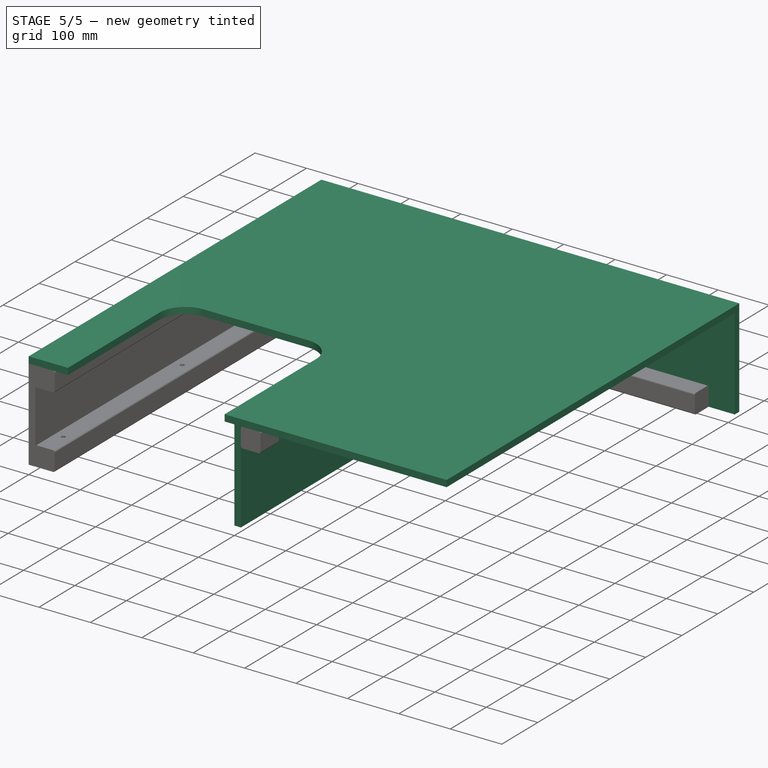
[diagram: stage 5 of 5 — iso view after this stage's code; geometry added in this stage tinted green]
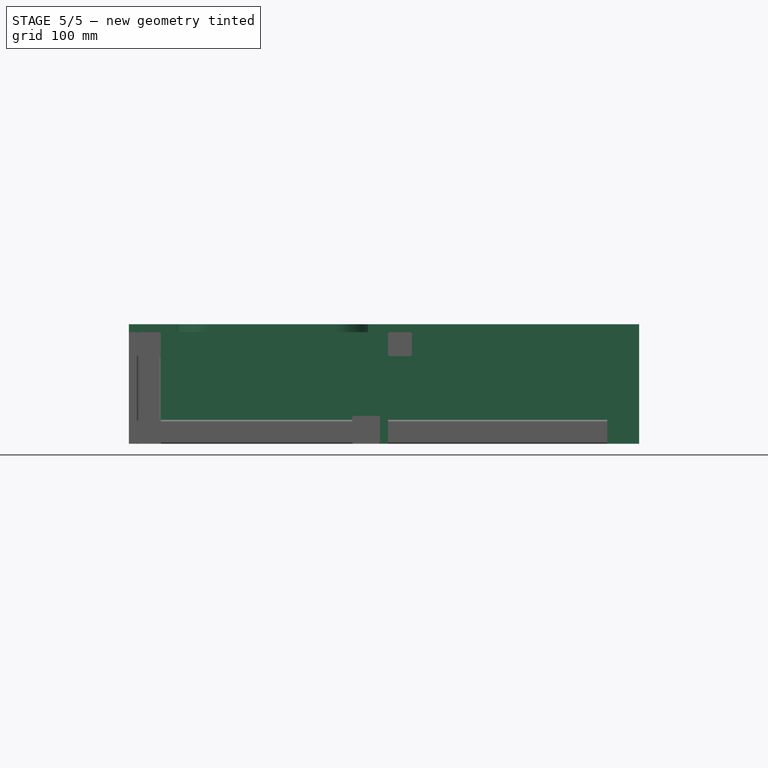
[diagram: stage 5 of 5 — front view after this stage's code; geometry added in this stage tinted green]
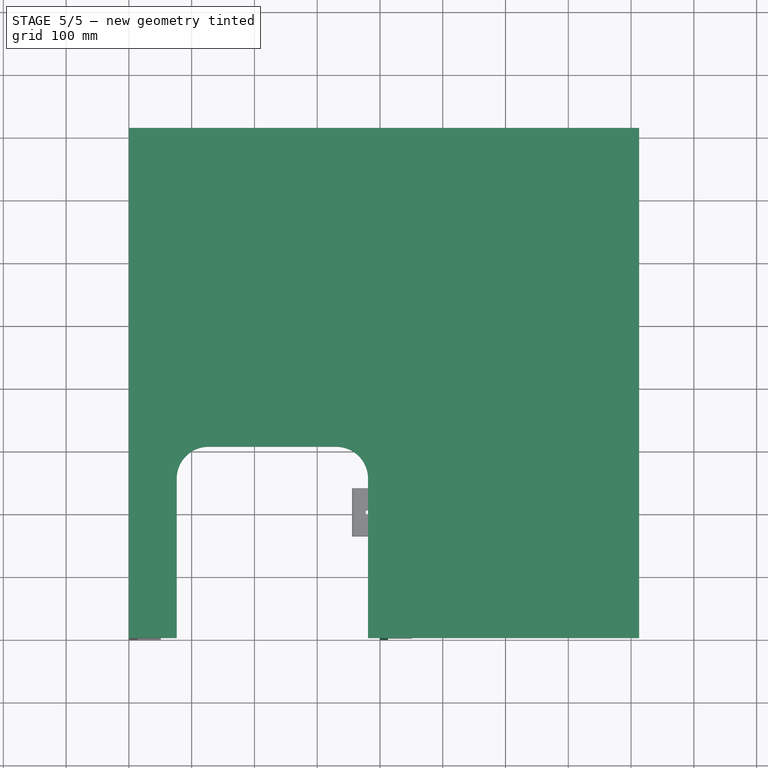
[diagram: stage 5 of 5 — top view after this stage's code; geometry added in this stage tinted green]
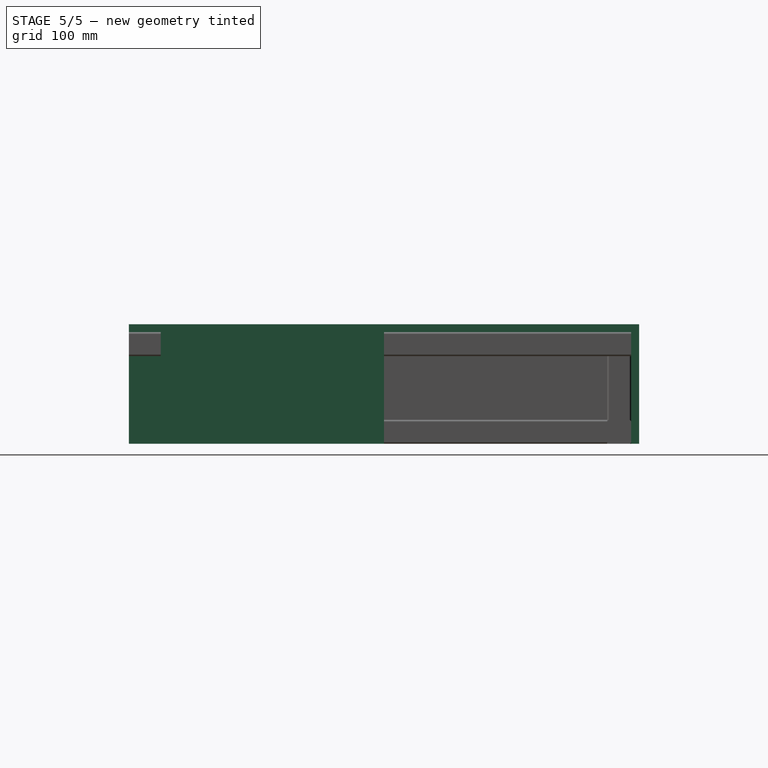
[diagram: stage 5 of 5 — right view after this stage's code; geometry added in this stage tinted green]
FEATURE [Sketcher::SketchObject] Sketch008  label="Sketch_D_Baffle_Ext_Wall"
  sketch-geometry (10):
    g0: LineSegment StartX=0 StartY=0 StartZ=0 EndX=0 EndY=800.1 EndZ=0
    g1: LineSegment StartX=0 StartY=800.1 StartZ=0 EndX=812.8 EndY=800.1 EndZ=0
    g2: LineSegment StartX=812.8 StartY=800.1 StartZ=0 EndX=812.8 EndY=0 EndZ=0
    g3: LineSegment StartX=812.8 StartY=0 StartZ=0 EndX=736.6 EndY=0 EndZ=0
    g4: LineSegment StartX=736.6 StartY=0 StartZ=0 EndX=736.6 EndY=254 EndZ=0
    g5: LineSegment StartX=685.8 StartY=304.8 StartZ=0 EndX=482.6 EndY=304.8 EndZ=0
    g6: LineSegment StartX=431.8 StartY=254 StartZ=0 EndX=431.8 EndY=0 EndZ=0
    g7: LineSegment StartX=431.8 StartY=0 StartZ=0 EndX=0 EndY=0 EndZ=0
    g8: ArcOfCircle CenterX=482.6 CenterY=254 CenterZ=0 NormalX=0 NormalY=0 NormalZ=1 AngleXU=0 Radius=50.8 StartAngle=1.5708 EndAngle=3.14159
    g9: ArcOfCircle CenterX=685.8 CenterY=254 CenterZ=0 NormalX=0 NormalY=0 NormalZ=1 AngleXU=0 Radius=50.8 StartAngle=0 EndAngle=1.5708
  constraints (27):
    c: Coincident(g-1,g0)
    c: PointOnObject(g0,g-2)
    c: Coincident(g0,g1)
    c: Horizontal(g1)
    c: Coincident(g1,g2)
    c: PointOnObject(g2,g-1)
    c: Vertical(g2)
    c: Coincident(g2,g3)
    c: PointOnObject(g3,g-1)
    c: Coincident(g3,g4)
    c: Vertical(g4)
    c: Horizontal(g5)
    c: PointOnObject(g6,g-1)
    c: Vertical(g6)
    c: Coincident(g6,g7)
    c: Coincident(g7,g0)
    c: DistanceY(g0,g0) = 800.1
    c: DistanceX(g1,g1) = 812.8
    c: DistanceX(g3,g3) = 76.2
    c: DistanceX(g6,g3) = 304.8
    c: DistanceY(g6,g5) = 304.8
    c: Equal(g8,g9)
    c: Tangent(g8,g6) = -1.5708
    c: Tangent(g9,g4) = -1.5708
    c: Tangent(g9,g5) = -1.5708
    c: Tangent(g8,g5) = -1.5708
    c: Radius(g8) = 50.8
FEATURE [Part::Extrusion] Extrude008  label="Part_D_Baffle_Ext_Wall_001"
  Base = -> Sketch008
  Dir = (0,0,1)
  DirMode = 2
  FaceMakerClass = Part::FaceMakerBullseye
  LengthFwd = 12.7
  LengthRev = 0
  Placement = pos=(812.8,0,209.55) rot=(0,1,0;3.14159rad)
  Solid = true
  Symmetric = false
FEATURE [Sketcher::SketchObject] Sketch009  label="Sketch_G_Baffle_Half_Wall"
  sketch-geometry (4):
    g0: LineSegment StartX=0 StartY=0 StartZ=0 EndX=406.4 EndY=0 EndZ=0
    g1: LineSegment StartX=406.4 StartY=0 StartZ=0 EndX=406.4 EndY=177.8 EndZ=0
    g2: LineSegment StartX=406.4 StartY=177.8 StartZ=0 EndX=0 EndY=177.8 EndZ=0
    g3: LineSegment StartX=0 StartY=177.8 StartZ=0 EndX=0 EndY=0 EndZ=0
  constraints (11):
    c: Coincident(g0,g1)
    c: Coincident(g1,g2)
    c: Coincident(g2,g3)
    c: Coincident(g3,g0)
    c: Horizontal(g0)
    c: Horizontal(g2)
    c: Vertical(g1)
    c: Vertical(g3)
    c: Coincident(g0,g-1)
    c: DistanceY(g3,g3) = 177.8
    c: DistanceX(g0,g0) = 406.4
FEATURE [Part::Extrusion] Extrude009  label="Part_G_Baffle_Half_Wall_001"
  Base = -> Sketch009
  Dir = (0,0,1)
  DirMode = 2
  FaceMakerClass = Part::FaceMakerBullseye
  LengthFwd = 12.7
  LengthRev = 0
  Placement = pos=(400.05,-8.5e-14,19.05) rot=(0.57735,0.57735,0.57735;2.0944rad)
  Solid = true
  Symmetric = false
FEATURE [Sketcher::SketchObject] Sketch010  label="Sketch_E_Baffle_Top"
  sketch-geometry (4):
    g0: LineSegment StartX=0 StartY=0 StartZ=0 EndX=812.8 EndY=0 EndZ=0
    g1: LineSegment StartX=812.8 StartY=0 StartZ=0 EndX=812.8 EndY=190.5 EndZ=0
    g2: LineSegment StartX=812.8 StartY=190.5 StartZ=0 EndX=0 EndY=190.5 EndZ=0
    g3: LineSegment StartX=0 StartY=190.5 StartZ=0 EndX=0 EndY=0 EndZ=0
  constraints (11):
    c: Coincident(g0,g1)
    c: Coincident(g1,g2)
    c: Coincident(g2,g3)
    c: Coincident(g3,g0)
    c: Horizontal(g0)
    c: Horizontal(g2)
    c: Vertical(g1)
    c: Vertical(g3)
    c: Coincident(g0,g-1)
    c: DistanceY(g3,g3) = 190.5
    c: DistanceX(g0,g0) = 812.8
FEATURE [Part::Extrusion] Extrude010  label="Part_E_Baffle_Top_001"
  Base = -> Sketch010
  Dir = (0,0,1)
  DirMode = 2
  FaceMakerClass = Part::FaceMakerBullseye
  LengthFwd = 12.7
  LengthRev = 0
  Placement = pos=(0,812.8,19.05) rot=(1,0,0;1.5708rad)
  Solid = true
  Symmetric = false
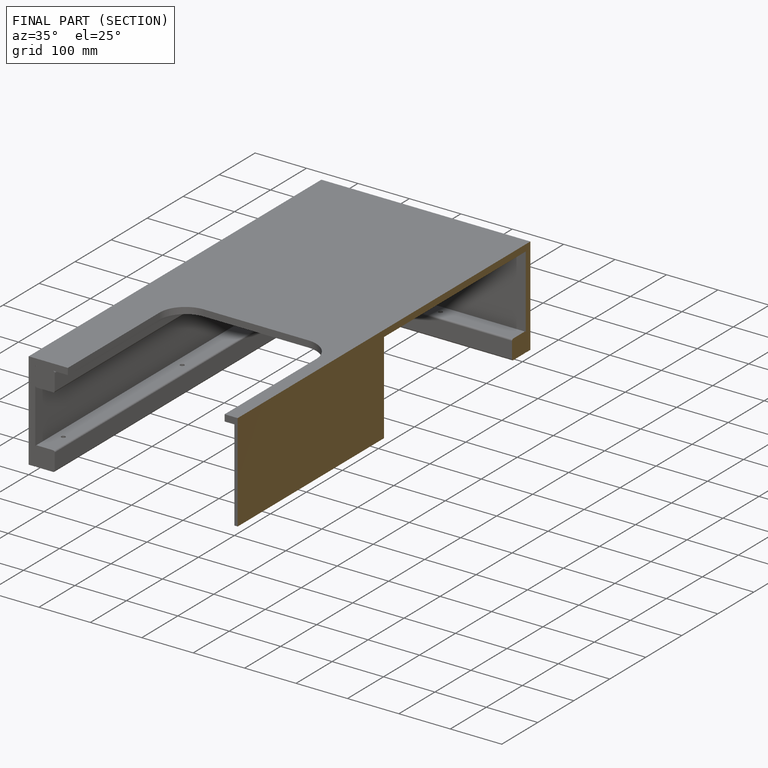
[diagram: finished part — half-section view (interior)]
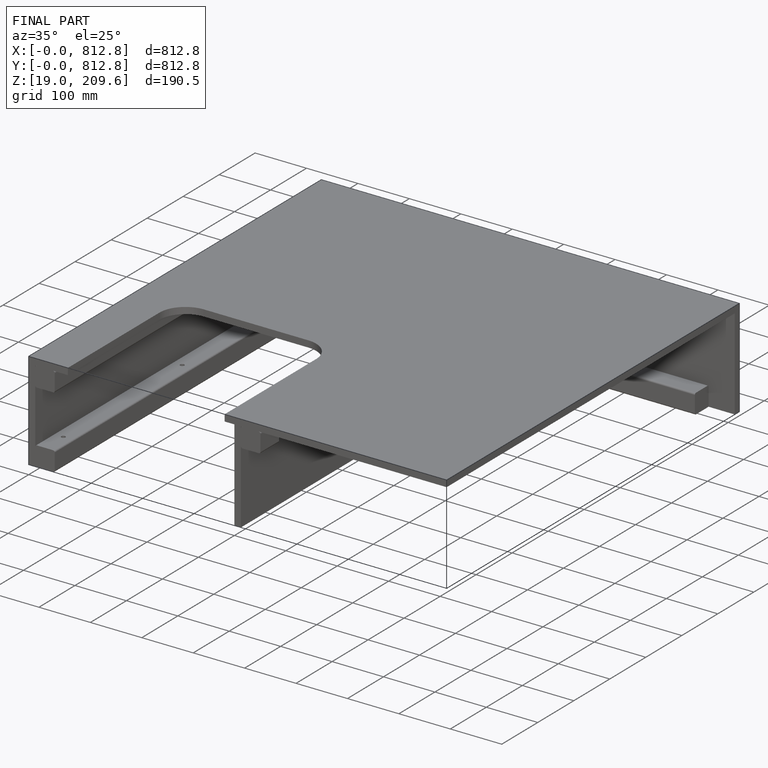
[diagram: finished part — iso view with bounding-box wireframe]
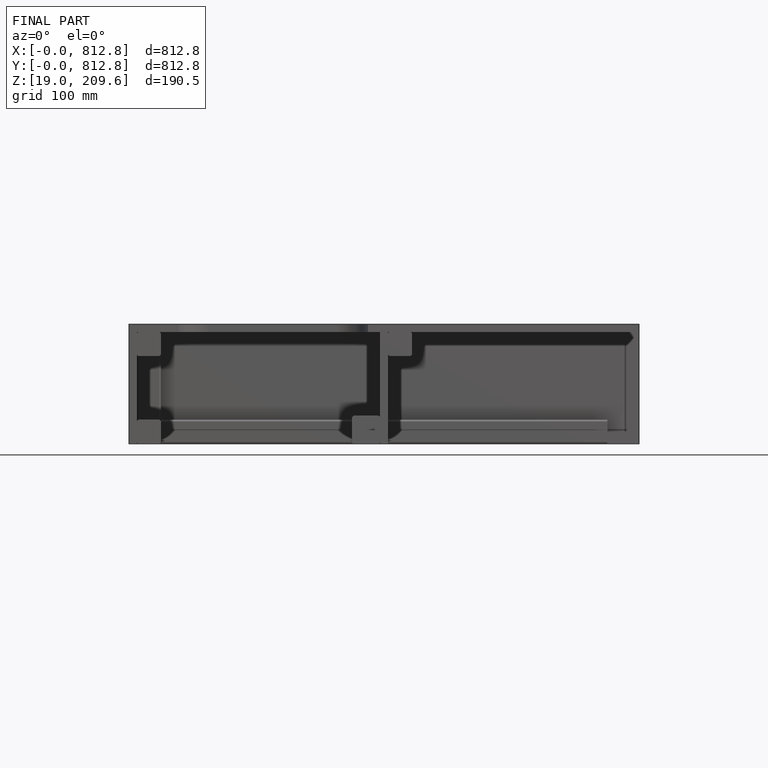
[diagram: finished part — front view with bounding-box wireframe]
